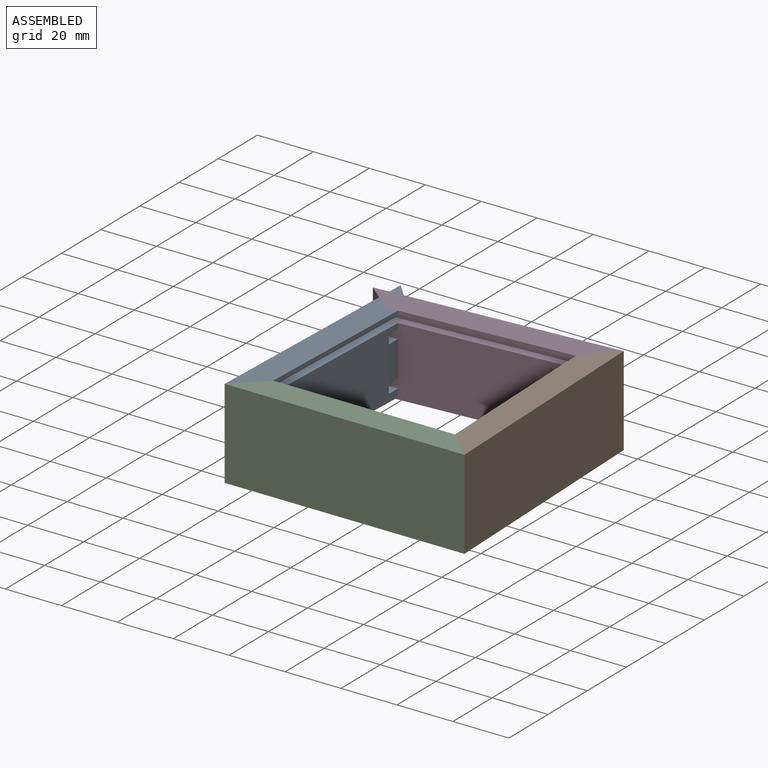
[diagram: assembled view]
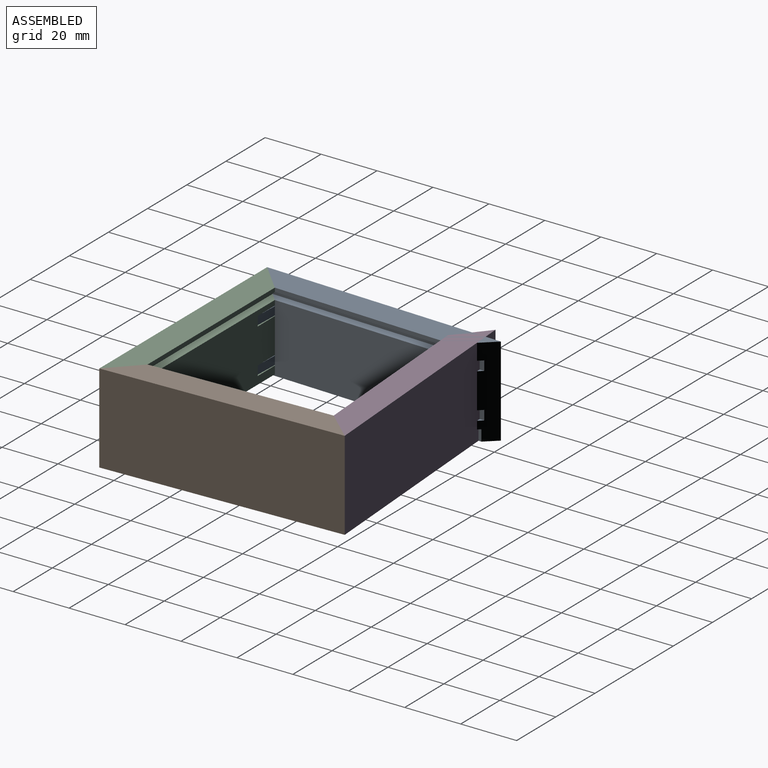
[diagram: assembled view, second angle]
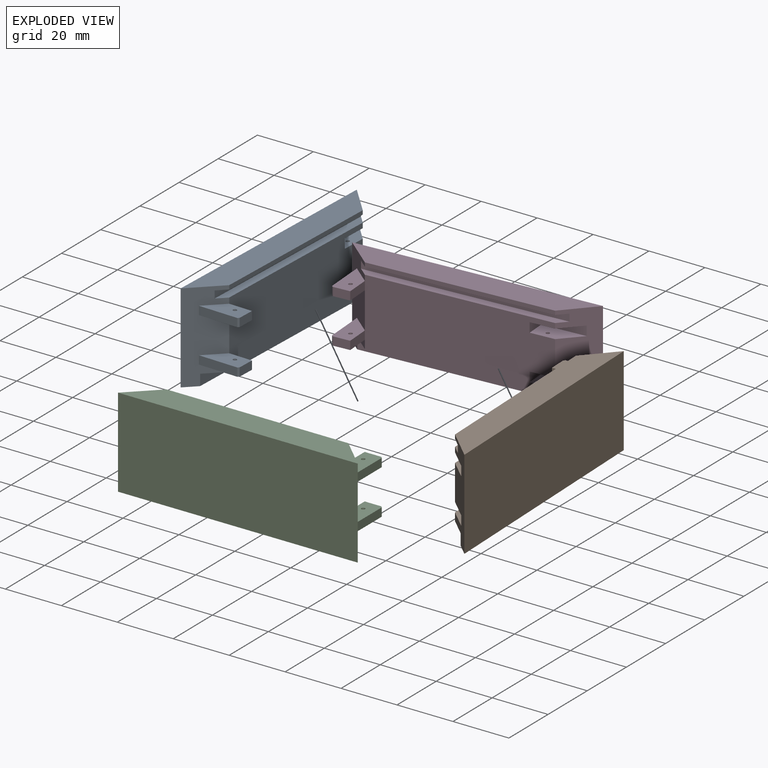
[diagram: exploded view]
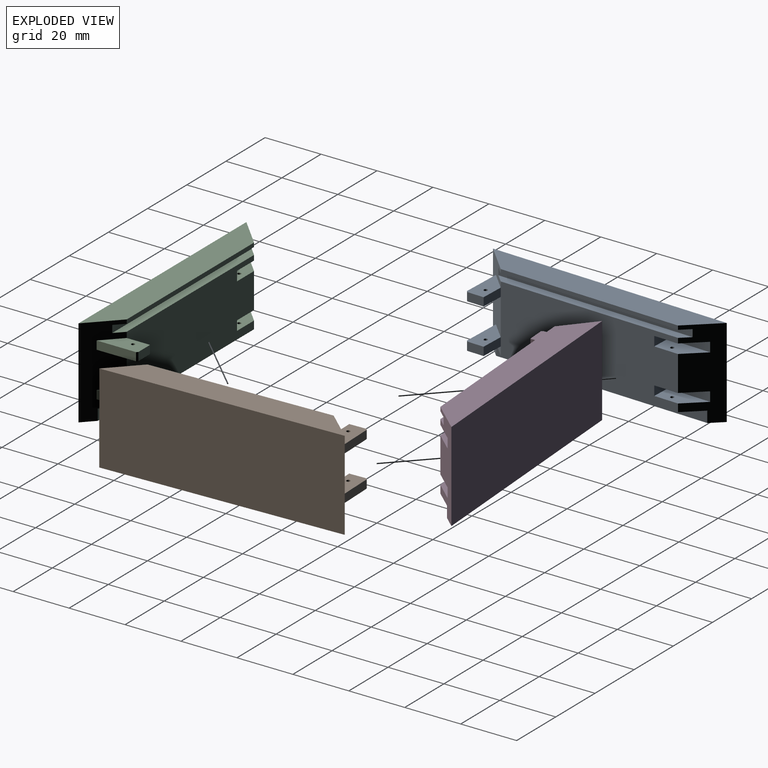
[diagram: exploded view, second angle]
ASSEMBLY  parts=4 mates=3
PART A: 171 faces, bbox 18.3x85.7x32 mm
  f0: plane 77.43x6mm, normal (0,0,-1), area 365.2mm2, adj f2,f3,f4,f12,f38,f39,f40,f41
  f1: cylinder r=0.65mm len=2.1mm, axis (0,0,-1), area 8.6mm2, adj f29,f42
  f2: plane 65x24mm, normal (1,0,0), area 1500.8mm2, adj f0,f3,f4,f5,f13,f18,f25,f27
  f3: plane 32x10.36mm, normal (0.72,0.69,0), area 350.3mm2, adj f0,f2,f5,f6,f7,f8,f9,f10
  f4: plane 32x10.36mm, normal (0.72,-0.69,0), area 360.9mm2, adj f0,f2,f5,f6,f7,f8,f9,f10
  f5: plane 71.21x3mm, normal (0,0,1), area 204.3mm2, adj f2,f3,f4,f6
  f6: plane 71.21x2.6mm, normal (1,0,0), area 185.2mm2, adj f3,f4,f5,f7
  f7: plane 71.21x3mm, normal (0,0,-1), area 204.3mm2, adj f3,f4,f6,f8
  f8: plane 65x1.4mm, normal (1,0,0), area 91mm2, adj f3,f4,f7,f9
  f9: plane 85.71x10mm, normal (0,0,1), area 753.6mm2, adj f3,f4,f8,f10
  f10: plane 85.71x32mm, normal (-1,0,0), area 2742.7mm2, adj f3,f4,f9,f11
  f11: plane 85.71x4mm, normal (0,0,-1), area 326.3mm2, adj f3,f4,f10,f12
  f12: plane 77.43x4mm, normal (1,0,0), area 309.7mm2, adj f0,f3,f4,f11
  f13: plane 8.34x3mm, normal (0,1,0), area 25mm2, adj f2,f14,f16,f17
  f14: plane 14.59x6.47mm, normal (0,0,1), area 72.8mm2, adj f4,f13,f15,f17,f23,f37
  f15: plane 14.09x3mm, normal (0,-1,0), area 42.3mm2, adj f4,f14,f16,f23
  f16: plane 14.59x6.47mm, normal (0,0,-1), area 72.8mm2, adj f4,f13,f15,f17,f23,f37
  f17: plane 5.97x3mm, normal (1,0,0), area 17.9mm2, adj f13,f14,f16,f23
  f18: plane 8.34x3mm, normal (0,1,0), area 25mm2, adj f2,f19,f21,f22
  f19: plane 14.59x6.47mm, normal (0,0,1), area 72.8mm2, adj f4,f18,f20,f22,f24,f36
  f20: plane 14.09x3mm, normal (0,-1,0), area 42.3mm2, adj f4,f19,f21,f24
  f21: plane 14.59x6.47mm, normal (0,0,-1), area 72.8mm2, adj f4,f18,f20,f22,f24,f36
  f22: plane 5.97x3mm, normal (1,0,0), area 17.9mm2, adj f18,f19,f21,f24
  f23: plane 3x0.5mm, normal (0.71,-0.71,0), area 2.1mm2, adj f14,f15,f16,f17
  f24: plane 3x0.5mm, normal (0.71,-0.71,0), area 2.1mm2, adj f19,f20,f21,f22
  f25: plane 15.53x6.6mm, normal (0,0,1), area 78.6mm2, adj f2,f3,f26,f28,f33
  f26: plane 15.53x3.4mm, normal (1,0,0), area 52.8mm2, adj f3,f25,f27,f28
  f27: plane 15.53x6.6mm, normal (0,0,-1), area 78.6mm2, adj f2,f3,f26,f28,f34
  f28: plane 6.6x3.4mm, normal (0,1,0), area 22.4mm2, adj f2,f25,f26,f27
  f29: plane 15.53x6.6mm, normal (0,0,1), area 78.6mm2, adj f1,f2,f3,f30,f32
  f30: plane 15.53x3.4mm, normal (1,0,0), area 52.8mm2, adj f3,f29,f31,f32
  f31: plane 15.53x6.6mm, normal (0,0,-1), area 78.6mm2, adj f2,f3,f30,f32,f33
  f32: plane 6.6x3.4mm, normal (0,1,0), area 22.4mm2, adj f2,f29,f30,f31
  f33: cylinder r=0.65mm len=12.6mm, axis (0,0,-1), area 51.5mm2, adj f25,f31
  f34: cylinder r=0.65mm len=1.3mm, axis (0,0,-1), area 4.9mm2, adj f27,f35
  f35: plane 1.3x1.3mm, normal (0,0,-1), area 1.3mm2, adj f34
  f36: cylinder r=0.65mm len=3mm, axis (0,0,1), area 12.3mm2, adj f19,f21
  f37: cylinder r=0.65mm len=3mm, axis (0,0,1), area 12.3mm2, adj f14,f16
  f38: cylinder r=1.8mm len=3.6mm, axis (0,0,-1), area 4mm2, adj f0,f39,f41,f42
  f39: plane 3.4x0.7mm, normal (1,0,0), area 2.4mm2, adj f0,f38,f40,f42
  f40: cylinder r=1.8mm len=3.6mm, axis (0,0,-1), area 4mm2, adj f0,f39,f41,f42
  f41: plane 3.4x0.7mm, normal (-1,0,0), area 2.4mm2, adj f0,f38,f40,f42
  f42: plane 7x3.6mm, normal (0,0,-1), area 21.1mm2, adj f1,f38,f39,f40,f41
  f43: plane 1.3x1.3mm, normal (0,0,-1), area 1.3mm2, adj f44
  f44: cylinder r=0.65mm len=23mm, axis (0,0,-1), area 93.9mm2, adj f0,f43
  f45: plane 0.67x0.2mm, normal (0,-1,0), area 0.1mm2, adj f46,f62,f63,f168
  f46: plane 0.96x0.2mm, normal (1,0,0), area 0.2mm2, adj f45,f47,f63,f168
  f47: plane 1.1x0.73mm, normal (-0.55,0.83,0), area 0.3mm2, adj f46,f48,f63,f168
  f48: extruded ~0.43x0.24mm, area 0.1mm2, adj f47,f49,f63,f168
  f49: plane 0.2x0.02mm, normal (-1,0,0), area 0mm2, adj f48,f50,f63,f168
  f50: extruded ~0.37x0.2mm, area 0.1mm2, adj f49,f62,f63,f168
  f51: plane 0.48x0.2mm, normal (-1,0,0), area 0.1mm2, adj f0,f52,f61,f63
  f52: plane 0.65x0.2mm, normal (0,1,0), area 0.1mm2, adj f0,f51,f53,f63
  f53: plane 0.48x0.2mm, normal (1,0,0), area 0.1mm2, adj f0,f52,f54,f63
  f54: plane 2.49x0.2mm, normal (0,1,0), area 0.5mm2, adj f0,f53,f55,f63
  f55: plane 0.77x0.2mm, normal (1,0,0), area 0.2mm2, adj f0,f54,f56,f63
  f56: plane 2.56x1.74mm, normal (0.56,-0.83,0), area 0.6mm2, adj f0,f55,f57,f63
  f57: plane 0.58x0.2mm, normal (0,-1,0), area 0.1mm2, adj f0,f56,f58,f63
  f58: plane 1.69x0.2mm, normal (-1,0,0), area 0.3mm2, adj f0,f57,f59,f63
  f59: plane 0.82x0.2mm, normal (0,-1,0), area 0.2mm2, adj f0,f58,f60,f63
  f60: plane 0.82x0.2mm, normal (-1,0,0), area 0.2mm2, adj f0,f59,f61,f63
  f61: plane 0.82x0.2mm, normal (0,1,0), area 0.2mm2, adj f0,f51,f60,f63
  f62: extruded ~0.49x0.2mm, area 0.1mm2, adj f45,f50,f63,f168
  f63: plane 3.97x2.99mm, normal (0,0,-1), area 6mm2, adj f45,f46,f47,f48,f49,f50,f51,f52
  f64: plane 2.77x0.2mm, normal (-1,0,0), area 0.6mm2, adj f0,f65,f87,f88
  f65: plane 0.71x0.2mm, normal (0,1,0), area 0.1mm2, adj f0,f64,f66,f88
  f66: plane 1.73x0.2mm, normal (1,0,0), area 0.3mm2, adj f0,f65,f67,f88
  f67: plane 0.2x0.04mm, normal (0,1,0), area 0mm2, adj f0,f66,f68,f88
  f68: plane 0.51x0.48mm, normal (-0.73,0.69,0), area 0.1mm2, adj f0,f67,f69,f88
  f69: extruded ~0.72x0.71mm, area 0.2mm2, adj f0,f68,f70,f88
  f70: extruded ~0.49x0.3mm, area 0.1mm2, adj f0,f69,f71,f88
  f71: extruded ~0.51x0.2mm, area 0.1mm2, adj f0,f70,f72,f88
  f72: extruded ~0.56x0.2mm, area 0.1mm2, adj f0,f71,f73,f88
  f73: extruded ~0.44x0.38mm, area 0.1mm2, adj f0,f72,f74,f88
  f74: extruded ~0.66x0.2mm, area 0.1mm2, adj f0,f73,f75,f88
  f75: extruded ~0.51x0.2mm, area 0.1mm2, adj f0,f74,f76,f88
  f76: extruded ~0.42x0.2mm, area 0.1mm2, adj f0,f75,f77,f88
  f77: extruded ~0.49x0.35mm, area 0.1mm2, adj f0,f76,f78,f88
  f78: plane 0.54x0.46mm, normal (-0.65,-0.76,0), area 0.1mm2, adj f0,f77,f79,f88
  f79: extruded ~0.45x0.3mm, area 0.1mm2, adj f0,f78,f80,f88
  f80: extruded ~0.45x0.2mm, area 0.1mm2, adj f0,f79,f81,f88
  f81: extruded ~0.35x0.2mm, area 0.1mm2, adj f0,f80,f82,f88
  f82: extruded ~0.36x0.2mm, area 0.1mm2, adj f0,f81,f83,f88
  f83: extruded ~0.31x0.2mm, area 0.1mm2, adj f0,f82,f84,f88
  f84: extruded ~0.32x0.2mm, area 0.1mm2, adj f0,f83,f85,f88
  f85: extruded ~0.63x0.58mm, area 0.2mm2, adj f0,f84,f86,f88
  f86: plane 1.01x1mm, normal (0.7,-0.71,0), area 0.3mm2, adj f0,f85,f87,f88
  f87: plane 0.58x0.2mm, normal (0,-1,0), area 0.1mm2, adj f0,f64,f86,f88
  f88: plane 4.02x2.78mm, normal (0,0,-1), area 5.9mm2, adj f64,f65,f66,f67,f68,f69,f70,f71
  f89: plane 0.68x0.2mm, normal (0,-1,0), area 0.1mm2, adj f0,f90,f92,f93
  f90: plane 1.46x0.2mm, normal (-1,0,0), area 0.3mm2, adj f0,f89,f91,f93
  f91: plane 0.68x0.2mm, normal (0,1,0), area 0.1mm2, adj f0,f90,f92,f93
  f92: plane 1.46x0.2mm, normal (1,0,0), area 0.3mm2, adj f0,f89,f91,f93
  f93: plane 1.46x0.68mm, normal (0,0,-1), area 1mm2, adj f89,f90,f91,f92
  f94: extruded ~0.92x0.32mm, area 0.2mm2, adj f0,f95,f113,f114
  f95: extruded ~0.41x0.2mm, area 0.1mm2, adj f0,f94,f96,f114
  f96: plane 0.2x0.09mm, normal (0.98,-0.2,0), area 0mm2, adj f0,f95,f97,f114
  f97: plane 0.78x0.2mm, normal (-0.09,1,0), area 0.2mm2, adj f0,f96,f98,f114
  f98: plane 1.42x0.2mm, normal (-1,0,0), area 0.3mm2, adj f0,f97,f99,f114
  f99: plane 0.71x0.2mm, normal (0,1,0), area 0.1mm2, adj f0,f98,f100,f114
  f100: plane 2.15x0.2mm, normal (1,0,0), area 0.4mm2, adj f0,f99,f101,f114
  f101: plane 2.02x0.2mm, normal (0.07,-1,0), area 0.4mm2, adj f0,f100,f102,f114
  f102: plane 0.33x0.2mm, normal (-0.88,-0.47,0), area 0.1mm2, adj f0,f101,f103,f114
  f103: extruded ~0.28x0.2mm, area 0.1mm2, adj f0,f102,f104,f114
  f104: extruded ~0.32x0.2mm, area 0.1mm2, adj f0,f103,f105,f114
  f105: extruded ~0.8x0.6mm, area 0.2mm2, adj f0,f104,f106,f114
  f106: extruded ~0.77x0.63mm, area 0.2mm2, adj f0,f105,f107,f114
  f107: extruded ~0.54x0.2mm, area 0.1mm2, adj f0,f106,f108,f114
  f108: extruded ~0.5x0.2mm, area 0.1mm2, adj f0,f107,f109,f114
  f109: plane 0.73x0.2mm, normal (0,-1,0), area 0.1mm2, adj f0,f108,f110,f114
  f110: extruded ~1.07x0.21mm, area 0.2mm2, adj f0,f109,f111,f114
  f111: extruded ~1.17x0.36mm, area 0.3mm2, adj f0,f110,f112,f114
  f112: extruded ~1.02x0.41mm, area 0.2mm2, adj f0,f111,f113,f114
  f113: extruded ~0.88x0.34mm, area 0.2mm2, adj f0,f94,f112,f114
  f114: plane 4.02x2.65mm, normal (0,0,-1), area 6.2mm2, adj f94,f95,f96,f97,f98,f99,f100,f101
  f115: extruded ~0.41x0.2mm, area 0.1mm2, adj f116,f139,f140,f169
  f116: extruded ~0.43x0.22mm, area 0.1mm2, adj f115,f117,f140,f169
  f117: extruded ~0.55x0.2mm, area 0.1mm2, adj f116,f118,f140,f169
  f118: extruded ~0.39x0.2mm, area 0.1mm2, adj f117,f119,f140,f169
  f119: extruded ~0.44x0.2mm, area 0.1mm2, adj f118,f120,f140,f169
  f120: extruded ~0.41x0.2mm, area 0.1mm2, adj f119,f121,f140,f169
  f121: extruded ~0.46x0.2mm, area 0.1mm2, adj f120,f139,f140,f169
  f122: extruded ~1.75x0.5mm, area 0.4mm2, adj f0,f123,f138,f140
  f123: extruded ~0.94x0.2mm, area 0.2mm2, adj f0,f122,f124,f140
  f124: extruded ~0.59x0.5mm, area 0.2mm2, adj f0,f123,f125,f140
  f125: extruded ~0.77x0.2mm, area 0.2mm2, adj f0,f124,f126,f140
  f126: extruded ~0.99x0.37mm, area 0.2mm2, adj f0,f125,f127,f140
  f127: extruded ~1.01x0.36mm, area 0.2mm2, adj f0,f126,f128,f140
  f128: extruded ~0.92x0.3mm, area 0.2mm2, adj f0,f127,f129,f140
  f129: extruded ~0.83x0.33mm, area 0.2mm2, adj f0,f128,f130,f140
  f130: extruded ~0.86x0.46mm, area 0.2mm2, adj f0,f129,f131,f140
  f131: plane 0.2x0.03mm, normal (1,0,0), area 0mm2, adj f0,f130,f132,f140
  f132: extruded ~0.72x0.2mm, area 0.1mm2, adj f0,f131,f133,f140
  f133: extruded ~0.41x0.39mm, area 0.1mm2, adj f0,f132,f134,f140
  f134: extruded ~0.7x0.2mm, area 0.1mm2, adj f0,f133,f135,f140
  f135: extruded ~0.48x0.2mm, area 0.1mm2, adj f0,f134,f136,f140
  f136: plane 0.67x0.2mm, normal (0,1,0), area 0.1mm2, adj f0,f135,f137,f140
  f137: extruded ~0.53x0.2mm, area 0.1mm2, adj f0,f136,f138,f140
  f138: extruded ~1.49x0.58mm, area 0.3mm2, adj f0,f122,f137,f140
  f139: extruded ~0.51x0.2mm, area 0.1mm2, adj f115,f121,f140,f169
  f140: plane 4.07x2.8mm, normal (0,0,-1), area 6.7mm2, adj f115,f116,f117,f118,f119,f120,f121,f122
  f141: plane 1.03x0.2mm, normal (0,1,0), area 0.2mm2, adj f142,f165,f166,f170
  f142: plane 0.52x0.2mm, normal (-1,0,0), area 0.1mm2, adj f141,f143,f166,f170
  f143: extruded ~0.71x0.49mm, area 0.2mm2, adj f142,f144,f166,f170
  f144: extruded ~0.41x0.2mm, area 0.1mm2, adj f143,f145,f166,f170
  f145: extruded ~0.51x0.2mm, area 0.1mm2, adj f144,f165,f166,f170
  f146: plane 0.49x0.2mm, normal (1,0,0), area 0.1mm2, adj f147,f163,f166,f167
  f147: plane 0.88x0.2mm, normal (0,1,0), area 0.2mm2, adj f146,f148,f166,f167
  f148: plane 0.44x0.2mm, normal (-1,0,0), area 0.1mm2, adj f147,f149,f166,f167
  f149: extruded ~0.53x0.2mm, area 0.1mm2, adj f148,f150,f166,f167
  f150: extruded ~0.33x0.2mm, area 0.1mm2, adj f149,f151,f166,f167
  f151: extruded ~0.35x0.2mm, area 0.1mm2, adj f150,f163,f166,f167
  f152: plane 1.23x0.2mm, normal (1,0,0), area 0.2mm2, adj f0,f153,f164,f166
  f153: plane 3.97x0.2mm, normal (0,-1,0), area 0.8mm2, adj f0,f152,f154,f166
  f154: plane 1.48x0.2mm, normal (-1,0,0), area 0.3mm2, adj f0,f153,f155,f166
  f155: extruded ~1.07x0.3mm, area 0.2mm2, adj f0,f154,f156,f166
  f156: extruded ~0.85x0.39mm, area 0.2mm2, adj f0,f155,f157,f166
  f157: extruded ~0.61x0.2mm, area 0.1mm2, adj f0,f156,f158,f166
  f158: extruded ~0.54x0.31mm, area 0.1mm2, adj f0,f157,f159,f166
  f159: plane 0.2x0.03mm, normal (0,1,0), area 0mm2, adj f0,f158,f160,f166
  f160: extruded ~0.44x0.27mm, area 0.1mm2, adj f0,f159,f161,f166
  f161: extruded ~0.58x0.2mm, area 0.1mm2, adj f0,f160,f162,f166
  f162: extruded ~0.76x0.38mm, area 0.2mm2, adj f0,f161,f164,f166
  f163: extruded ~0.5x0.2mm, area 0.1mm2, adj f146,f151,f166,f167
  f164: extruded ~1.23x0.24mm, area 0.3mm2, adj f0,f152,f162,f166
  f165: plane 0.55x0.2mm, normal (1,0,0), area 0.1mm2, adj f141,f145,f166,f170
  f166: plane 3.97x2.94mm, normal (0,0,-1), area 8.6mm2, adj f141,f142,f143,f144,f145,f146,f147,f148
  f167: plane 1.14x0.88mm, normal (0,0,-1), area 0.9mm2, adj f146,f147,f148,f149,f150,f151,f163
  f168: plane 1.53x0.99mm, normal (0,0,-1), area 0.7mm2, adj f45,f46,f47,f48,f49,f50,f62
  f169: plane 1.32x1.16mm, normal (0,0,-1), area 1.2mm2, adj f115,f116,f117,f118,f119,f120,f121,f139
  f170: plane 1.23x1.03mm, normal (0,0,-1), area 1.1mm2, adj f141,f142,f143,f144,f145,f165
PART B: same geometry as A
PART C: same geometry as A
PART D: same geometry as A
PLACE A rot(axis=(0,0,-1),2deg) t=(33.12,-55.94,-21.13)mm
PLACE B rot(axis=(0,0,-1),178deg) t=(115.84,9.02,-21.13)mm
PLACE C rot(axis=(0,0,1),90deg) t=(108.12,-66.29,-21.13)mm
PLACE D rot(axis=(0,0,-1),86deg) t=(40.31,14.11,-21.13)mm
MATE fastened B.f4 <-> D.f3  axis (-0.74,0.67,0) through (115.48,19.37,10.87)mm
MATE fastened C.f3 <-> A.f4  axis (-0.69,0.72,0) through (32.76,-66.29,10.87)mm
MATE fastened C.f4 <-> B.f3  axis (0.69,0.72,0) through (118.47,-66.29,-21.13)mm
